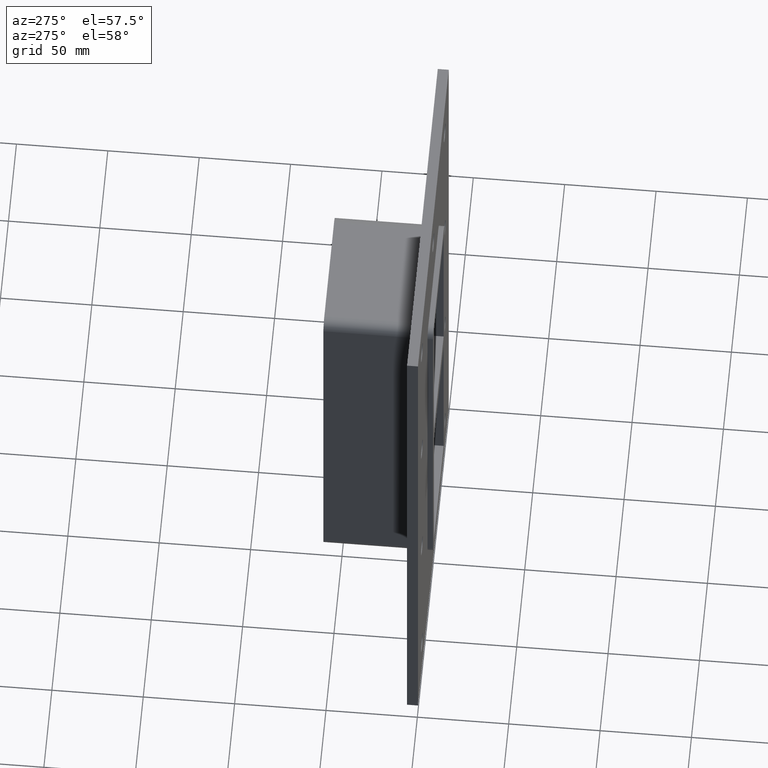
[diagram: clean part render]
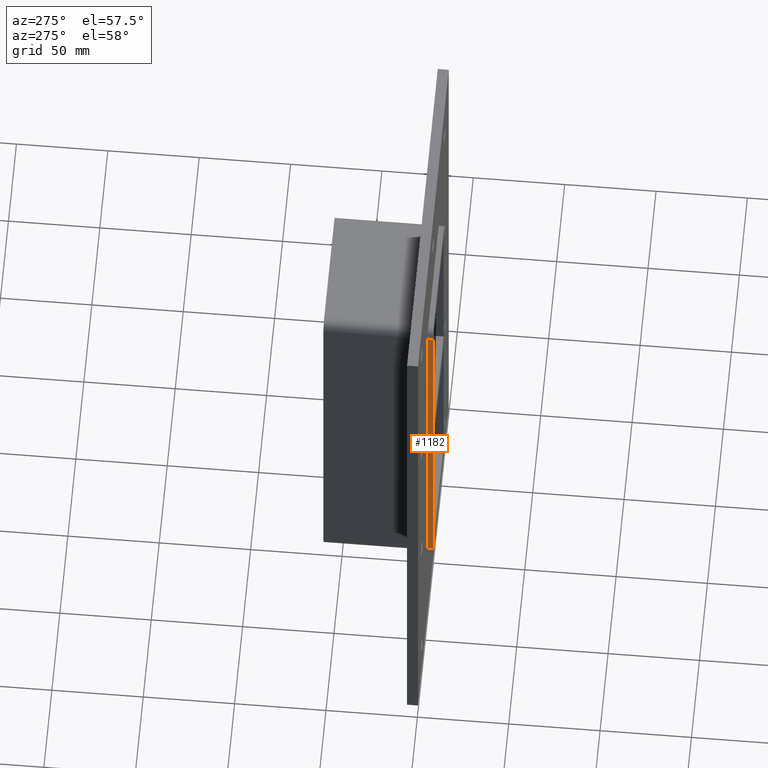
[diagram: same view with one face highlighted and labeled with its STEP entity id]
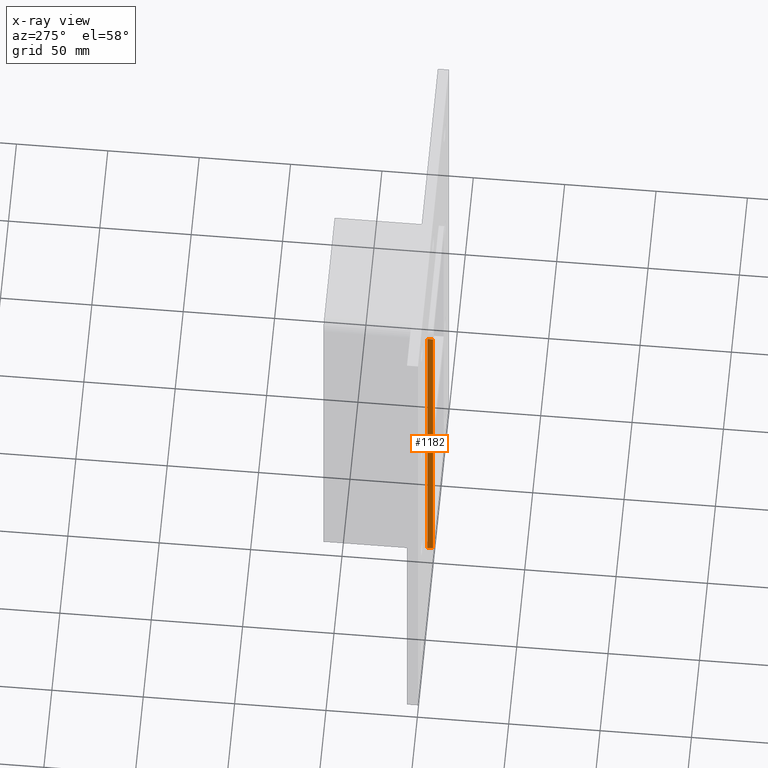
[diagram: x-ray of the same camera — body ghosted, the highlighted face saturated]
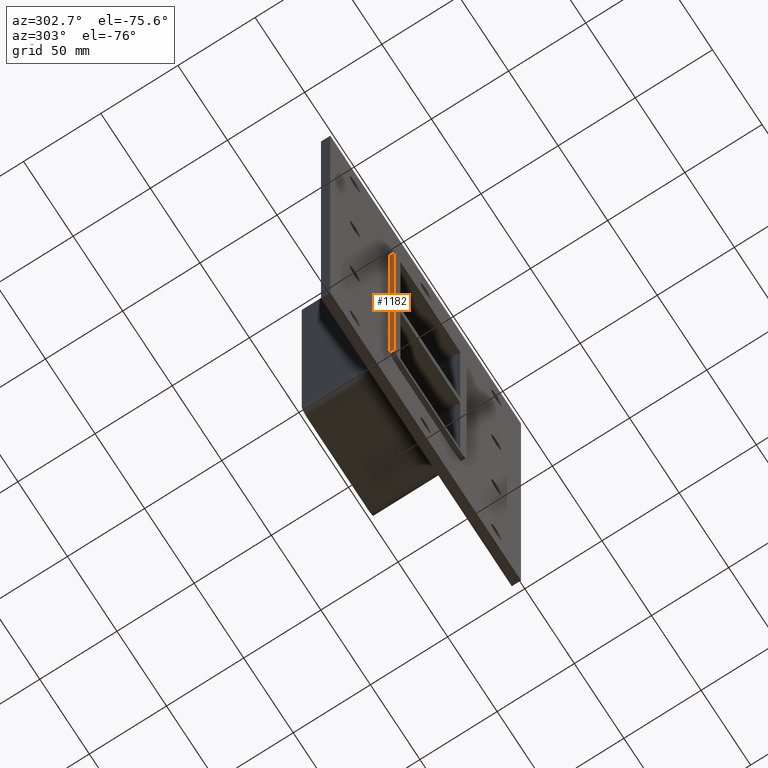
[diagram: same view with one face highlighted and labeled with its STEP entity id]
A machine part, auxiliary view. The second image highlights one B-rep face of the part: STEP entity #1182.
The next image is the same camera in x-ray: the body ghosted, the highlighted face saturated — about 0% of this face is hidden behind the body in this view.
A second angle (auxiliary view) of the same face is appended — the face is thin or edge-on in the first view.
In plain terms, the highlighted planar face has unit normal (-1, 0, 0).
Its self-contained STEP definition (entity closure, byte-faithful):
#730=CARTESIAN_POINT('',(-36.25,0.0,-106.00000000000001));
#731=VERTEX_POINT('',#730);
#741=CARTESIAN_POINT('',(-36.25,0.0,106.00000000000001));
#742=VERTEX_POINT('',#741);
#743=CARTESIAN_POINT('',(-36.25,0.0,106.00000000000003));
#744=DIRECTION('',(0.0,0.0,-1.0));
#745=VECTOR('',#744,212.00000000000006);
#746=LINE('',#743,#745);
#747=EDGE_CURVE('',#742,#731,#746,.T.);
#1092=CARTESIAN_POINT('',(-36.25,-3.0,106.00000000000001));
#1093=VERTEX_POINT('',#1092);
#1094=CARTESIAN_POINT('',(-36.25,0.0,106.00000000000001));
#1095=DIRECTION('',(0.0,-1.0,0.0));
#1096=VECTOR('',#1095,3.0);
#1097=LINE('',#1094,#1096);
#1098=EDGE_CURVE('',#742,#1093,#1097,.T.);
#1159=CARTESIAN_POINT('',(-36.25,0.0,-112.00000000000003));
#1160=DIRECTION('',(-1.0,0.0,0.0));
#1161=DIRECTION('',(0.0,0.0,1.0));
#1162=AXIS2_PLACEMENT_3D('',#1159,#1160,#1161);
#1163=PLANE('',#1162);
#1164=ORIENTED_EDGE('',*,*,#747,.T.);
#1165=CARTESIAN_POINT('',(-36.25,-3.0,-106.00000000000001));
#1166=VERTEX_POINT('',#1165);
#1167=CARTESIAN_POINT('',(-36.25,-3.0,-106.00000000000001));
#1168=DIRECTION('',(0.0,1.0,0.0));
#1169=VECTOR('',#1168,3.0);
#1170=LINE('',#1167,#1169);
#1171=EDGE_CURVE('',#1166,#731,#1170,.T.);
#1172=ORIENTED_EDGE('',*,*,#1171,.F.);
#1173=CARTESIAN_POINT('',(-36.25,-3.0,106.00000000000003));
#1174=DIRECTION('',(0.0,0.0,-1.0));
#1175=VECTOR('',#1174,212.00000000000006);
#1176=LINE('',#1173,#1175);
#1177=EDGE_CURVE('',#1093,#1166,#1176,.T.);
#1178=ORIENTED_EDGE('',*,*,#1177,.F.);
#1179=ORIENTED_EDGE('',*,*,#1098,.F.);
#1180=EDGE_LOOP('',(#1164,#1172,#1178,#1179));
#1181=FACE_OUTER_BOUND('',#1180,.T.);
#1182=ADVANCED_FACE('',(#1181),#1163,.T.);